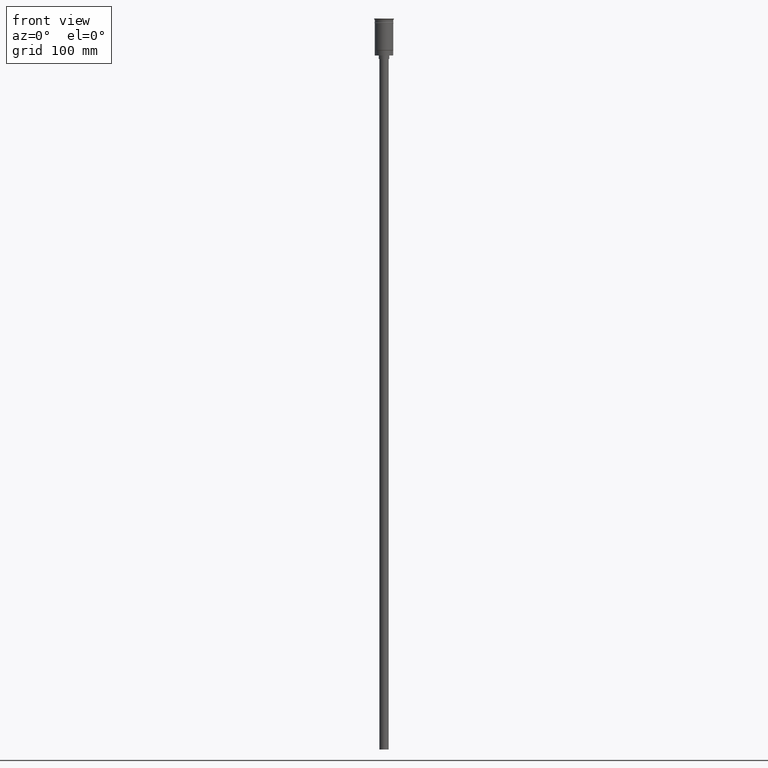
[diagram: clean part render]
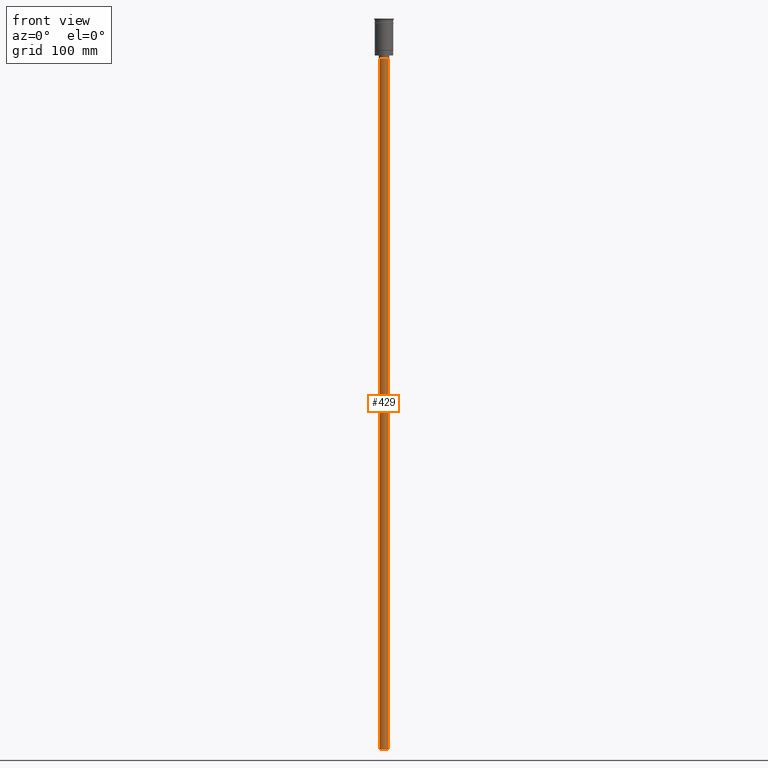
[diagram: same view with one face highlighted and labeled with its STEP entity id]
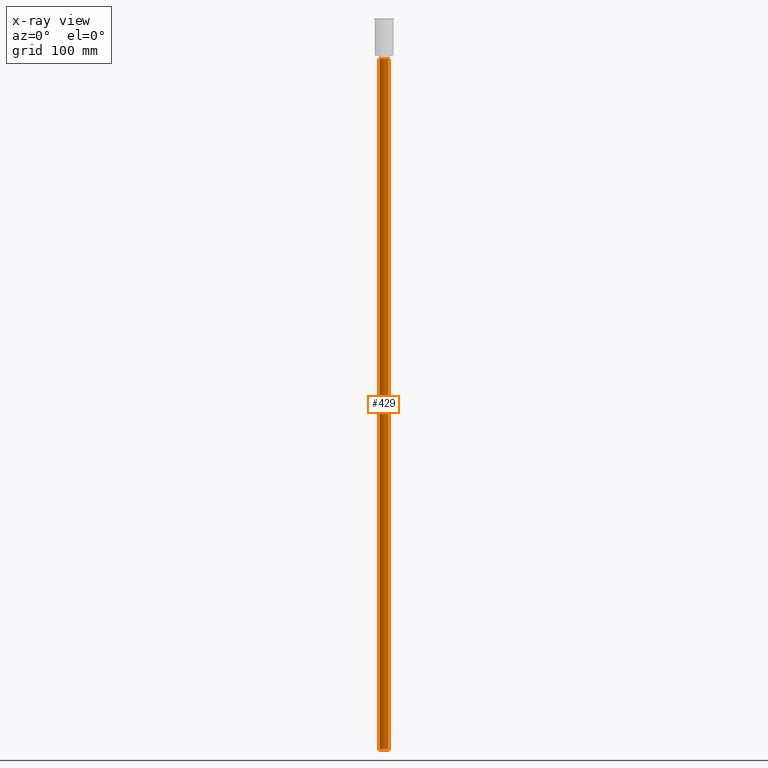
[diagram: x-ray of the same camera — body ghosted, the highlighted face saturated]
A machine part, front view. The second image highlights one B-rep face of the part: STEP entity #429.
The next image is the same camera in x-ray: the body ghosted, the highlighted face saturated — about 0% of this face is hidden behind the body in this view.
In plain terms, the highlighted cylindrical surface (edge-blend (fillet) strip) has radius 4 mm, axis along (-0, -0, 1).
Its self-contained STEP definition (entity closure, byte-faithful):
#17 = VERTEX_POINT ( 'NONE', #533 ) ;
#42 = LINE ( 'NONE', #539, #1067 ) ;
#49 = DIRECTION ( 'NONE',  ( -0.000000000000000000, -0.000000000000000000, 1.000000000000000000 ) ) ;
#185 = DIRECTION ( 'NONE',  ( 0.000000000000000000, 0.000000000000000000, -1.000000000000000000 ) ) ;
#217 = DIRECTION ( 'NONE',  ( -1.000000000000000000, 0.000000000000000000, 0.000000000000000000 ) ) ;
#238 = VERTEX_POINT ( 'NONE', #1181 ) ;
#255 = DIRECTION ( 'NONE',  ( -0.000000000000000000, -0.000000000000000000, 1.000000000000000000 ) ) ;
#265 = EDGE_CURVE ( 'NONE', #1004, #17, #459, .T. ) ;
#269 = CARTESIAN_POINT ( 'NONE',  ( -4.000000000000000000, 4.898587196589412829E-16, -632.0000000000000000 ) ) ;
#303 = CIRCLE ( 'NONE', #908, 4.000000000000000000 ) ;
#410 = DIRECTION ( 'NONE',  ( -1.000000000000000000, 0.000000000000000000, 0.000000000000000000 ) ) ;
#429 = ADVANCED_FACE ( 'NONE', ( #810 ), #1396, .T. ) ;
#459 = LINE ( 'NONE', #269, #1267 ) ;
#533 = CARTESIAN_POINT ( 'NONE',  ( -4.000000000000000000, 4.898587196589412829E-16, -35.00000000000000000 ) ) ;
#539 = CARTESIAN_POINT ( 'NONE',  ( 4.000000000000000000, 0.000000000000000000, -632.0000000000000000 ) ) ;
#594 = EDGE_CURVE ( 'NONE', #238, #17, #1565, .T. ) ;
#655 = ORIENTED_EDGE ( 'NONE', *, *, #265, .F. ) ;
#669 = ORIENTED_EDGE ( 'NONE', *, *, #750, .F. ) ;
#695 = ORIENTED_EDGE ( 'NONE', *, *, #594, .T. ) ;
#750 = EDGE_CURVE ( 'NONE', #1475, #1004, #303, .T. ) ;
#795 = CARTESIAN_POINT ( 'NONE',  ( 0.000000000000000000, 0.000000000000000000, -632.0000000000000000 ) ) ;
#810 = FACE_OUTER_BOUND ( 'NONE', #1050, .T. ) ;
#816 = AXIS2_PLACEMENT_3D ( 'NONE', #1518, #923, #1536 ) ;
#856 = CARTESIAN_POINT ( 'NONE',  ( -4.000000000000000000, 4.898587196589412829E-16, -632.0000000000000000 ) ) ;
#908 = AXIS2_PLACEMENT_3D ( 'NONE', #795, #185, #410 ) ;
#923 = DIRECTION ( 'NONE',  ( -0.000000000000000000, -0.000000000000000000, 1.000000000000000000 ) ) ;
#1004 = VERTEX_POINT ( 'NONE', #856 ) ;
#1049 = CARTESIAN_POINT ( 'NONE',  ( 4.000000000000000000, 0.000000000000000000, -632.0000000000000000 ) ) ;
#1050 = EDGE_LOOP ( 'NONE', ( #655, #669, #1596, #695 ) ) ;
#1064 = CARTESIAN_POINT ( 'NONE',  ( 0.000000000000000000, 0.000000000000000000, -35.00000000000000000 ) ) ;
#1067 = VECTOR ( 'NONE', #49, 1000.000000000000000 ) ;
#1090 = EDGE_CURVE ( 'NONE', #1475, #238, #42, .T. ) ;
#1181 = CARTESIAN_POINT ( 'NONE',  ( 4.000000000000000000, 0.000000000000000000, -35.00000000000000000 ) ) ;
#1267 = VECTOR ( 'NONE', #255, 1000.000000000000000 ) ;
#1396 = CYLINDRICAL_SURFACE ( 'NONE', #816, 4.000000000000000000 ) ;
#1429 = AXIS2_PLACEMENT_3D ( 'NONE', #1064, #1561, #217 ) ;
#1475 = VERTEX_POINT ( 'NONE', #1049 ) ;
#1518 = CARTESIAN_POINT ( 'NONE',  ( 0.000000000000000000, 0.000000000000000000, -632.0000000000000000 ) ) ;
#1536 = DIRECTION ( 'NONE',  ( 1.000000000000000000, 0.000000000000000000, 0.000000000000000000 ) ) ;
#1561 = DIRECTION ( 'NONE',  ( 0.000000000000000000, 0.000000000000000000, -1.000000000000000000 ) ) ;
#1565 = CIRCLE ( 'NONE', #1429, 4.000000000000000000 ) ;
#1596 = ORIENTED_EDGE ( 'NONE', *, *, #1090, .T. ) ;